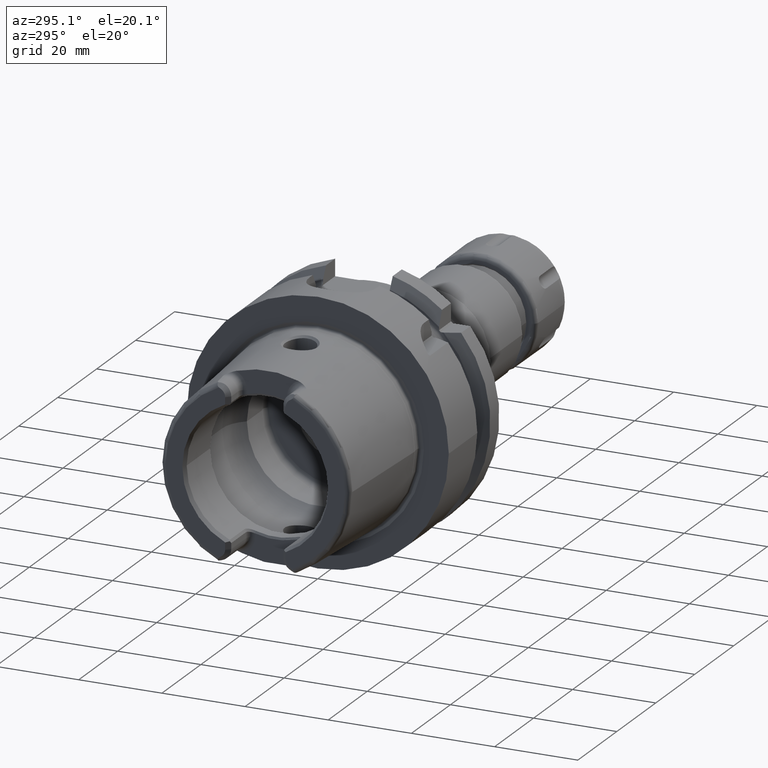
[diagram: clean part render]
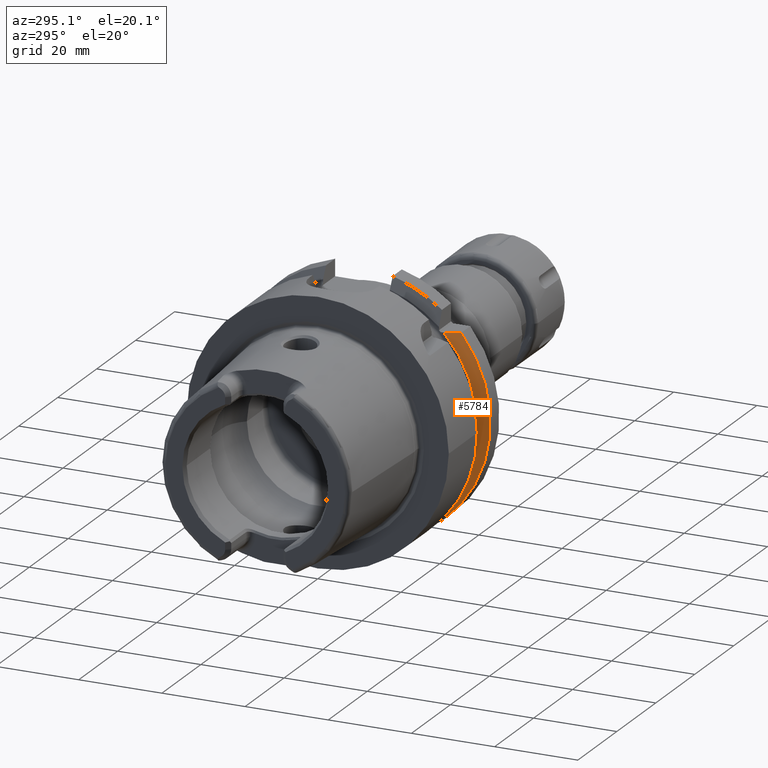
[diagram: same view with one face highlighted and labeled with its STEP entity id]
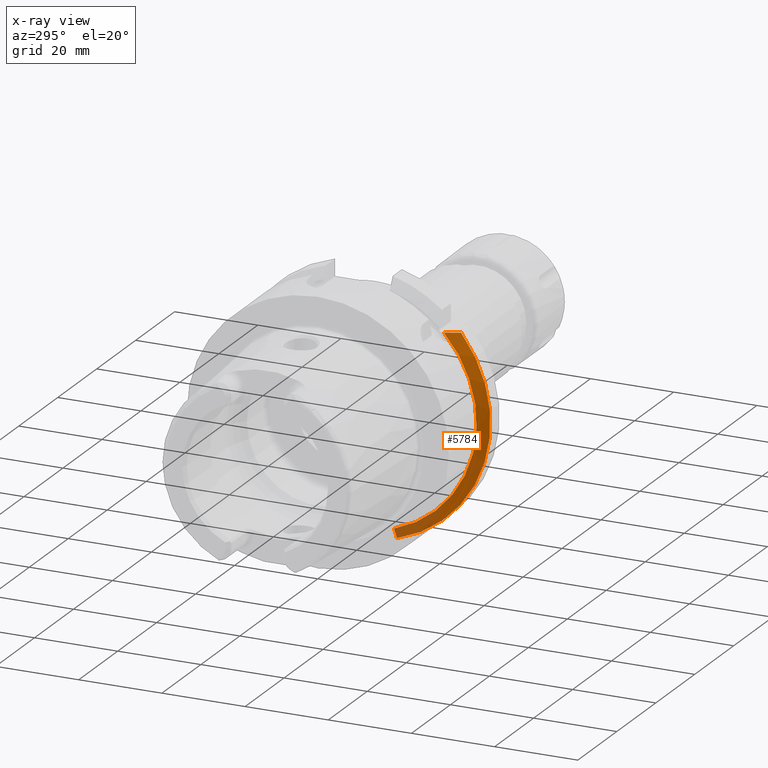
[diagram: x-ray of the same camera — body ghosted, the highlighted face saturated]
A machine part, auxiliary view. The second image highlights one B-rep face of the part: STEP entity #5784.
The next image is the same camera in x-ray: the body ghosted, the highlighted face saturated — about 16% of this face is hidden behind the body in this view.
In plain terms, the highlighted conical surface has half-angle 60 deg.
Its self-contained STEP definition (entity closure, byte-faithful):
#2105=CARTESIAN_POINT('',(1.9875E1,-2.100115501712E1,1.985E1));
#2106=CARTESIAN_POINT('',(2.002615778083E1,-2.136140971936E1,1.985E1));
#2107=CARTESIAN_POINT('',(2.033884699379E1,-2.209786160622E1,1.985E1));
#2108=CARTESIAN_POINT('',(2.083744118214E1,-2.324577082409E1,1.985E1));
#2109=CARTESIAN_POINT('',(2.119367380645E1,-2.404863363206E1,1.985E1));
#2110=CARTESIAN_POINT('',(2.137749907476E1,-2.445868966237E1,1.985E1));
#2112=CARTESIAN_POINT('',(2.137749907476E1,0.E0,0.E0));
#2113=DIRECTION('',(1.E0,0.E0,0.E0));
#2114=DIRECTION('',(0.E0,-7.764663384879E-1,6.301587301587E-1));
#2115=AXIS2_PLACEMENT_3D('',#2112,#2113,#2114);
#2117=CARTESIAN_POINT('',(1.9875E1,-9.0175E0,-2.745461174016E1));
#2118=CARTESIAN_POINT('',(2.003399901875E1,-9.0175E0,-2.774448053791E1));
#2119=CARTESIAN_POINT('',(2.035729051151E1,-9.0175E0,-2.833297398512E1));
#2120=CARTESIAN_POINT('',(2.085789481016E1,-9.0175E0,-2.924158789478E1));
#2121=CARTESIAN_POINT('',(2.120250873981E1,-9.0175E0,-2.986536377611E1));
#2122=CARTESIAN_POINT('',(2.137749907476E1,-9.0175E0,-3.018169467989E1));
#2124=CARTESIAN_POINT('',(1.9875E1,0.E0,0.E0));
#2125=DIRECTION('',(-1.E0,0.E0,0.E0));
#2126=DIRECTION('',(0.E0,-3.120501867909E-1,-9.500656192726E-1));
#2127=AXIS2_PLACEMENT_3D('',#2124,#2125,#2126);
#3300=CARTESIAN_POINT('',(1.9875E1,-9.0175E0,-2.745461174016E1));
#3302=VERTEX_POINT('',#3300);
#3305=VERTEX_POINT('',#2122);
#3312=CARTESIAN_POINT('',(2.137749907476E1,-2.445868966237E1,1.985E1));
#3314=VERTEX_POINT('',#3312);
#3328=CARTESIAN_POINT('',(1.9875E1,-2.100115501712E1,1.985E1));
#3330=VERTEX_POINT('',#3328);
#5770=CARTESIAN_POINT('',(2.062624953738E1,0.E0,0.E0));
#5771=DIRECTION('',(1.E0,0.E0,0.E0));
#5772=DIRECTION('',(0.E0,-1.E0,0.E0));
#5773=AXIS2_PLACEMENT_3D('',#5770,#5771,#5772);
#5774=CONICAL_SURFACE('',#5773,3.019879763210E1,6.E1);
#5776=ORIENTED_EDGE('',*,*,#5775,.T.);
#5777=ORIENTED_EDGE('',*,*,#5713,.T.);
#5779=ORIENTED_EDGE('',*,*,#5778,.F.);
#5781=ORIENTED_EDGE('',*,*,#5780,.T.);
#5782=EDGE_LOOP('',(#5776,#5777,#5779,#5781));
#5783=FACE_OUTER_BOUND('',#5782,.F.);
#5784=ADVANCED_FACE('',(#5783),#5774,.T.);
#2111=B_SPLINE_CURVE_WITH_KNOTS('',3,(#2105,#2106,#2107,#2108,#2109,#2110),
.UNSPECIFIED.,.F.,.F.,(4,1,1,4),(0.E0,3.333333333333E-1,6.666666666667E-1,1.E0),
.UNSPECIFIED.);
#2116=CIRCLE('',#2115,3.15E1);
#2123=B_SPLINE_CURVE_WITH_KNOTS('',3,(#2117,#2118,#2119,#2120,#2121,#2122),
.UNSPECIFIED.,.F.,.F.,(4,1,1,4),(0.E0,3.333333333333E-1,6.666666666667E-1,1.E0),
.UNSPECIFIED.);
#2128=CIRCLE('',#2127,2.889759526419E1);
#5713=EDGE_CURVE('',#3314,#3305,#2116,.T.);
#5775=EDGE_CURVE('',#3330,#3314,#2111,.T.);
#5778=EDGE_CURVE('',#3302,#3305,#2123,.T.);
#5780=EDGE_CURVE('',#3302,#3330,#2128,.T.);